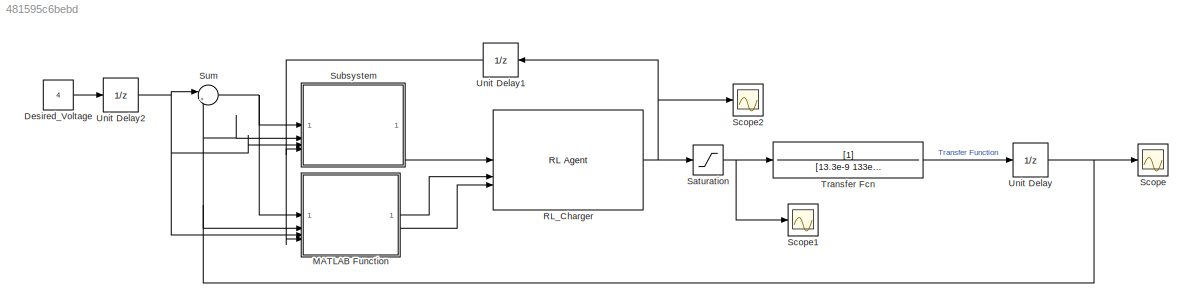
MODEL slx_481595c6bebd
KIND model
CONFIG AbsTol = auto
CONFIG EnableMultiTasking = on
CONFIG FixedStep = auto
CONFIG MaxStep = 1e-4
CONFIG MinStep = auto
CONFIG RelTol = 1e-4
CONFIG SampleTimeConstraint = Unconstrained
CONFIG SolverName = VariableStepAuto
CONFIG StartTime = 0.0
CONFIG StopTime = 0.002
BLOCK [Constant] Desired_Voltage
  Value = 4
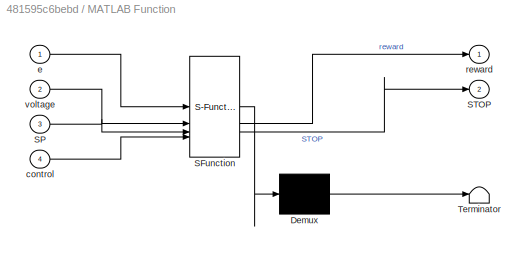
BLOCK [SubSystem] MATLAB Function
  ErrorFcn = Stateflow.Translate.translate
  PermitHierarchicalResolution = ExplicitOnly
  SFBlockType = MATLAB Function
  TreatAsAtomicUnit = on
BLOCK [Demux] MATLAB Function/ Demux 
  Outputs = 1
BLOCK [S-Function] MATLAB Function/ SFunction 
  EnableBusSupport = on
  FunctionName = sf_sfun
  PortCounts = [4 3]
  SFcnIsStateOwnerBlock = off
  SFunctionDeploymentMode = off
  Tag = Stateflow S-Function 2
BLOCK [Terminator] MATLAB Function/ Terminator 
BLOCK [Inport] MATLAB Function/SP
  Port = 3
BLOCK [Outport] MATLAB Function/STOP
  Port = 2
BLOCK [Inport] MATLAB Function/control
  Port = 4
BLOCK [Inport] MATLAB Function/e
BLOCK [Outport] MATLAB Function/reward
BLOCK [Inport] MATLAB Function/voltage
  Port = 2
BLOCK [Reference] RL_Charger  REF=rllib/RL Agent
  SourceBlock = rllib/RL Agent
  SourceType = RL Agent
BLOCK [Saturate] Saturation
  LowerLimit = 0
  UpperLimit = 10
BLOCK [Scope] Scope
  Floating = off
  NumInputPorts = 1
  ScopeSpecificationString = Simulink.scopes.TimeScopeBlockCfg('CurrentConfiguration', extmgr.ConfigurationSet(extmgr.Configuration('Core','General UI',true),extmgr.Configuration('Core','Source UI',true),extmgr.Configuration('Sources','WiredSimulink',true,'DataLoggingVariableName','ScopeData1'),extmgr.Configuration('Visuals','Time Domain',true,'SerializedDisplays',{struct('MinYLimReal','-0.54381','MaxYLimReal','4.89433','YLab...<+1369ch>
BLOCK [Scope] Scope1
  Floating = off
  NumInputPorts = 1
  ScopeSpecificationString = Simulink.scopes.TimeScopeBlockCfg('CurrentConfiguration', extmgr.ConfigurationSet(extmgr.Configuration('Core','General UI',true),extmgr.Configuration('Core','Source UI',true),extmgr.Configuration('Sources','WiredSimulink',true,'DataLoggingVariableName','ScopeData1'),extmgr.Configuration('Visuals','Time Domain',true,'SerializedDisplays',{struct('MinYLimReal','-0.99917','MaxYLimReal','8.99249','YLab...<+1369ch>
BLOCK [Scope] Scope2
  Floating = off
  NumInputPorts = 1
  ScopeSpecificationString = Simulink.scopes.TimeScopeBlockCfg('CurrentConfiguration', extmgr.ConfigurationSet(extmgr.Configuration('Core','General UI',true),extmgr.Configuration('Core','Source UI',true),extmgr.Configuration('Sources','WiredSimulink',true,'DataLoggingVariableName','ScopeData2'),extmgr.Configuration('Visuals','Time Domain',true,'SerializedDisplays',{struct('MinYLimReal','-6.66446','MaxYLimReal','10.13654','YLa...<+1454ch>
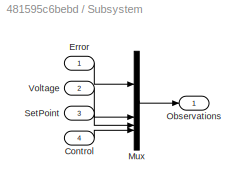
BLOCK [SubSystem] Subsystem
BLOCK [Inport] Subsystem/Control
  NameLocation = left
  Port = 4
BLOCK [Inport] Subsystem/Error
  NameLocation = left
BLOCK [Mux] Subsystem/Mux
  DisplayOption = bar
BLOCK [Outport] Subsystem/Observations
  NameLocation = right
BLOCK [Inport] Subsystem/SetPoint
  NameLocation = left
  Port = 3
BLOCK [Inport] Subsystem/Voltage
  NameLocation = left
  Port = 2
BLOCK [Sum] Sum
  Inputs = |+-
BLOCK [TransferFcn] Transfer Fcn
  Denominator = [13.3e-9 133e-6 1]
BLOCK [UnitDelay] Unit Delay
  HasFrameUpgradeWarning = on
  SampleTime = Ts
BLOCK [UnitDelay] Unit Delay1
  HasFrameUpgradeWarning = on
  SampleTime = Ts
BLOCK [UnitDelay] Unit Delay2
  HasFrameUpgradeWarning = on
  SampleTime = Ts
LINE Desired_Voltage:1 -> Unit Delay2:1
LINE MATLAB Function:1 -> RL_Charger:2
LINE MATLAB Function:2 -> RL_Charger:3
NET RL_Charger:1 -> Saturation:1, Scope2:1, Unit Delay1:1
NET Saturation:1 -> Scope1:1, Transfer Fcn:1
LINE Subsystem/Control:1 -> Subsystem/Mux:4
LINE Subsystem/Error:1 -> Subsystem/Mux:1
LINE Subsystem/Mux:1 -> Subsystem/Observations:1
LINE Subsystem/SetPoint:1 -> Subsystem/Mux:3
LINE Subsystem/Voltage:1 -> Subsystem/Mux:2
LINE Subsystem:1 -> RL_Charger:1
NET Sum:1 -> MATLAB Function:1, Subsystem:1
LINE Transfer Fcn:1 -> Unit Delay:1
NET Unit Delay1:1 -> MATLAB Function:4, Subsystem:4
NET Unit Delay2:1 -> MATLAB Function:3, Subsystem:3, Sum:1
NET Unit Delay:1 -> MATLAB Function:2, Scope:1, Subsystem:2, Sum:2
note: NET lines group one-source signal fan-out (src -> all destinations, sorted); 1:1 wires keep LINE
CHART MATLAB Function states=1 transitions=1
  STATE_LABEL 'eML_blk_kernel()'
  STATE_LABEL 'SCRIPT:\n% Función de recompensa\nfunction [reward, STOP] = fcn(e, voltage, SP, control)\n    % Función de recompensa ajustada\n    ce1 = 200 * (abs(e) <= 0.5); % Recompensa alta para errores pequeños\n    ce2 = -25 * (abs(e) > 0.5); % Penalización moderada para errores grandes\n    cv = -10 * (voltage > 4); % Penalización moderada para corriente alta\n    cc = 180 * (control == SP);\n    % Calcular la re...<+143ch>'
CHART  states=0 transitions=0
